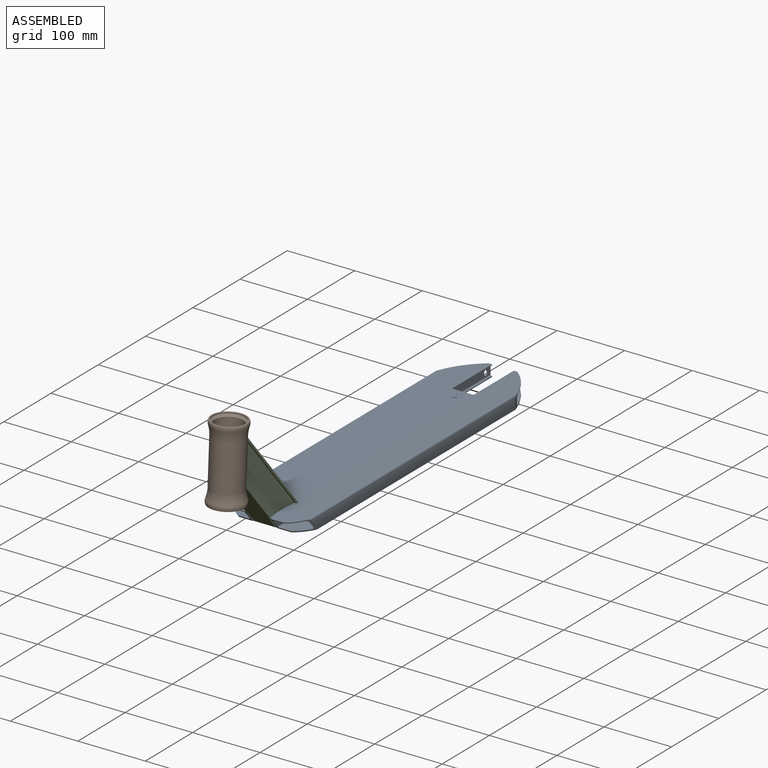
[diagram: assembled view]
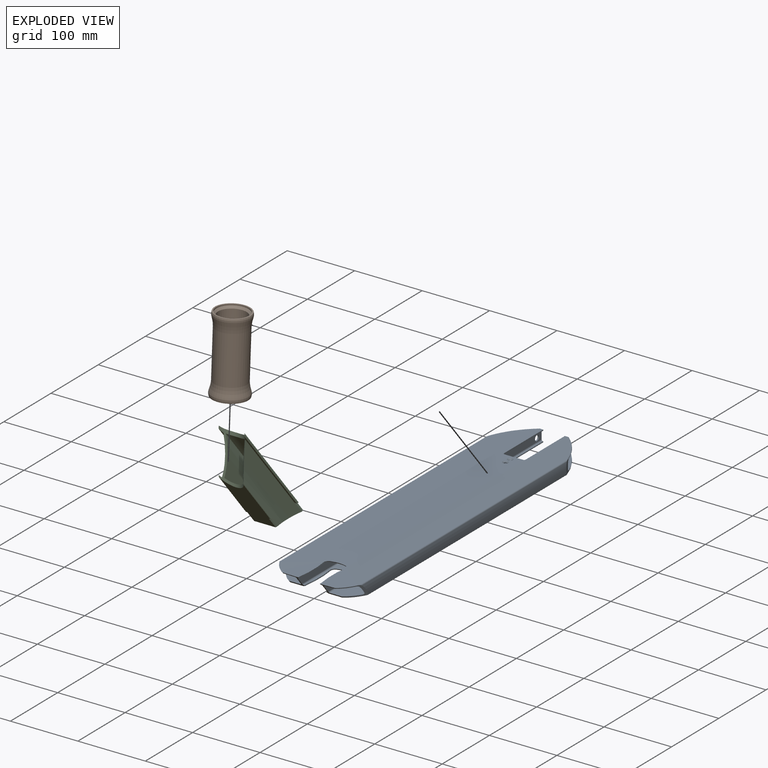
[diagram: exploded view]
GUIDED TOUR — MATED ASSEMBLY (Onshape document 1438ce3dd39c90005c70dcbc, AutoMate assembly 1438ce3dd39c90005c70dcbc_45b9a19df025072b10bbda96_6a6063b94d9cc4db74f0efc2_default)

This assembly has 3 components, labeled P0..P2 below (a component is one placed occurrence of a part; the same part can appear more than once), held together by 2 mates. A mate is a constraint between two components; its type names the relative motion it leaves free:
  FASTENED — locks the two components together rigidly (no relative motion).
Axis/direction vectors are unit vectors and 'through' points are millimeter coordinates, both in the assembly's world frame.

MATES
  1. FASTENED "Fastened 2": P1 <-> P2, direction (0.000, 0.052, 0.999) through (0.00, -582.55, 114.62) mm
  2. FASTENED "Fastened 1": P0 <-> P2, direction (0.000, 0.643, -0.766) through (-16.00, -518.60, 18.33) mm

ASSEMBLY ORDER
  1. P2 — the base component [order verified]
  2. P1 [order verified]
  3. P0 [order verified]
Order-tag legend:
  [order verified] — this step's position reverses a verified removal order: the component was checked to insert without passing through the ones already placed.

Of the 3 components, 1 carries the full construction recipe — the FeatureScript program that regenerates the part's solid from scratch; the rest are supplied as boundary geometry only.
Each toured component is shown spotlighted twice — in the assembled view, then in the exploded view, where a leader line traces a displaced component back to its assembled socket (saturated green if recipe-attached, orange if geometry-only; every other component desaturated gray) — followed by its recipe or geometry summary and the mates that hold it.
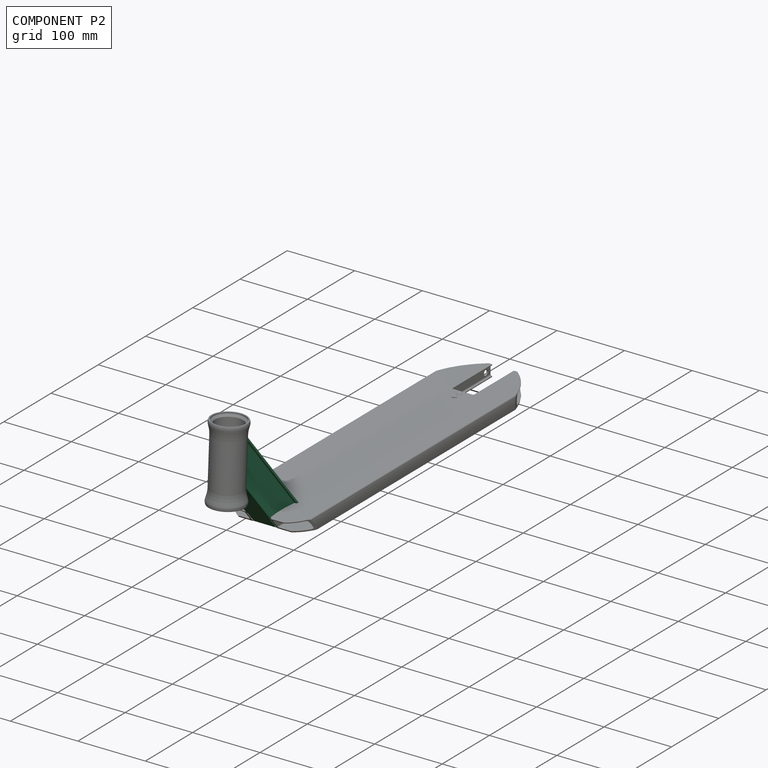
[diagram: component P2 — assembled]
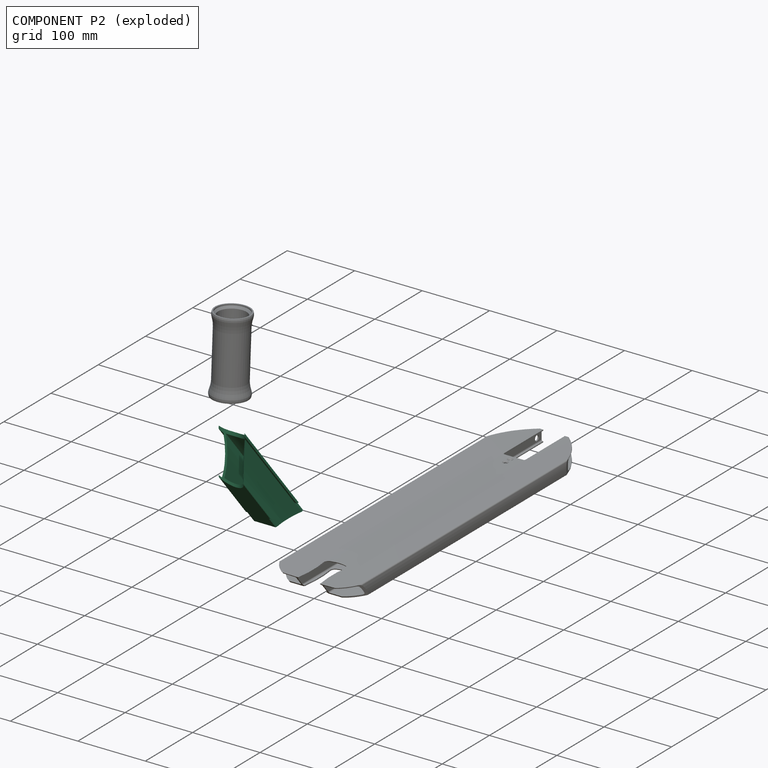
[diagram: component P2 — exploded]
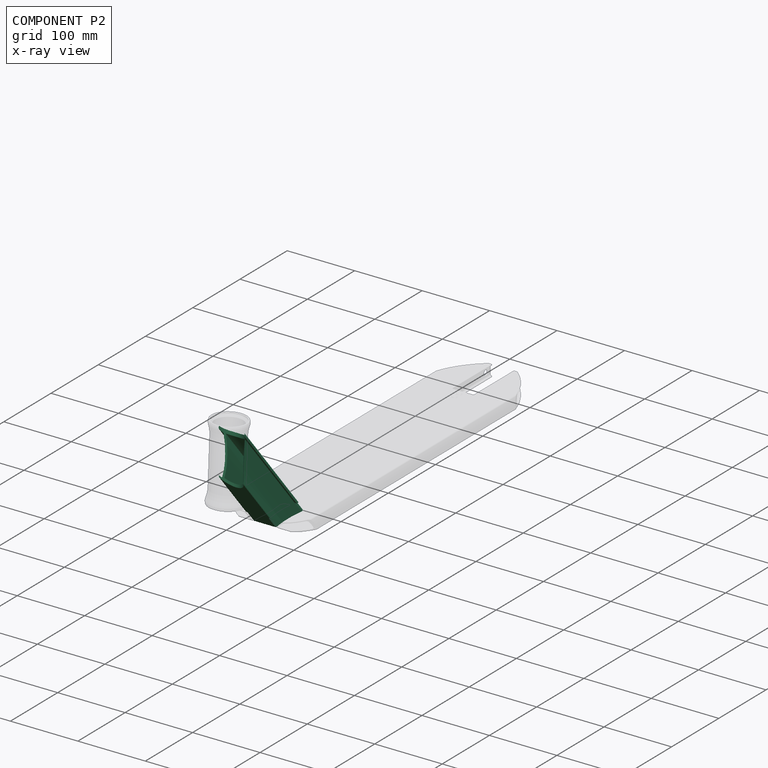
[diagram: component P2 — x-ray view]
COMPONENT P2 — recipe-attached (CADFS 00576307, mesh-verified: the recipe's output STEP matches this component's geometry to below the mesh-comparison resolution (tessellation chordal tolerance ~0.32 mm)).
Held by: FASTENED mate "Fastened 2" to P1; FASTENED mate "Fastened 1" to P0.
Construction recipe (FeatureScript — the CAD program that rebuilds this solid; sketch coordinates are in the units given by the * unit suffixes, e.g. mm):

FeatureScript 1511;
import(path : "onshape/std/geometry.fs", version : "1511.0");
import(path : "onshape/std/common.fs", version : "1511.0");
const mm = millimeter;
const VERTEX = EntityType.VERTEX;
const EDGE = EntityType.EDGE;
const FACE = EntityType.FACE;
const BODY = EntityType.BODY;
function v(x, y){return vector(x, y);}
function OD(order){return orderDisambiguation(order);}
function OSD(set){return originalSetDisambiguation(set);}
function TD(topology){return topologyDisambiguation(topology);}
function TDD(query){return trueDependencyDisambiguation(query);}
function sQuery(a, b, c) {return sketchEntityQuery(a, b, c);}

annotation { "Feature Type Name" : "Feature", "Feature Type Description" : "" }
export const myFeature = defineFeature(function(context is Context, id is Id, definition is map)
    precondition{}
    {
        {
            var Q0;
            Q0=qCreatedBy(makeId("Front.planeOp"),FACE);
            var sketch = newSketch(context, id + "F0", { "sketchPlane" : qUnion([Q0])});
            skLineSegment(sketch, "E0", {"start": v(0, 0) * mm, "end": v(18, 0) * mm});
            skLineSegment(sketch, "E1", {"start": v(0, 0) * mm, "end": v(-18, 0) * mm});
            skLineSegment(sketch, "E2", {"start": v(-16, 42) * mm, "end": v(-19, 42) * mm});
            skArc(sketch, "E3", {"start": v(-19, 45) * mm, "mid": v(-19.4, 43.5) * mm, "end": v(-19, 42) * mm});
            skArc(sketch, "E4", {"start": v(19, 45) * mm, "mid": v(0, 48.75) * mm, "end": v(-19, 45) * mm});
            skArc(sketch, "E5", {"start": v(19, 42) * mm, "mid": v(19.4, 43.5) * mm, "end": v(19, 45) * mm});
            skLineSegment(sketch, "E6", {"start": v(19, 42) * mm, "end": v(16, 42) * mm});
            skLineSegment(sketch, "E7", {"start": v(18, 2) * mm, "end": v(16, 2) * mm});
            skArc(sketch, "E8", {"start": v(16, 42) * mm, "mid": v(13.98, 22) * mm, "end": v(16, 2) * mm});
            skLineSegment(sketch, "E9", {"start": v(-18, 2) * mm, "end": v(-16, 2) * mm});
            skArc(sketch, "E10", {"start": v(-16, 2) * mm, "mid": v(-13.98, 22) * mm, "end": v(-16, 42) * mm});
            skLineSegment(sketch, "E11", {"start": v(0, 3) * mm, "end": v(-14, 3) * mm});
            skLineSegment(sketch, "E12", {"start": v(0, 3) * mm, "end": v(14, 3) * mm});
            skArc(sketch, "E13", {"start": v(-14, 3) * mm, "mid": v(-11.98, 23) * mm, "end": v(-14, 43) * mm});
            skArc(sketch, "E14", {"start": v(14, 43) * mm, "mid": v(11.98, 23) * mm, "end": v(14, 3) * mm});
            skArc(sketch, "E15", {"start": v(14, 43) * mm, "mid": v(0, 45) * mm, "end": v(-14, 43) * mm});
            skArc(sketch, "E16", {"start": v(-18, 2) * mm, "mid": v(-18.27, 1) * mm, "end": v(-18, 0) * mm});
            skArc(sketch, "E17", {"start": v(18, 0) * mm, "mid": v(18.27, 1) * mm, "end": v(18, 2) * mm});
            skSolve(sketch);
        }
        {
            var Q0;
            Q0 = qSketchRegion(id + "F0", true);
            extrude(context, id + "F1", {"entities" : qUnion([Q0]), "depth" : 207.98 * mm, "offsetDistance" : 25 * mm});
        }
        {
            var Q0;
            Q0=makeQuery(id+"F1.opExtrude","CAP_EDGE",EDGE,{"disambiguationData":[OSD([sQuery(id+"F0.wireOp",EDGE,"E0"),sQuery(id+"F0.wireOp",EDGE,"E1")])],"isStart":false});
            chamfer(context, id + "F2", {"entities" : qUnion([Q0]), "chamferType" : ChamferType.OFFSET_ANGLE, "width" : 45 * mm, "oppositeDirection" : false, "angle" : 50 * degree, "tangentPropagation" : true});
        }
        {
            var Q0;
            Q0=makeQuery(id+"F1.opExtrude","CAP_EDGE",EDGE,{"disambiguationData":[OSD([sQuery(id+"F0.wireOp",EDGE,"E0"),sQuery(id+"F0.wireOp",EDGE,"E1")])],"isStart":true});
            chamfer(context, id + "F3", {"entities" : qUnion([Q0]), "chamferType" : ChamferType.OFFSET_ANGLE, "width" : 45 * mm, "oppositeDirection" : false, "angle" : 47 * degree, "tangentPropagation" : true});
        }
        {
            var Q0;
            Q0=makeQuery(id+"F1.opExtrude","SWEPT_FACE",FACE,{"disambiguationData":[OSD([sQuery(id+"F0.wireOp",EDGE,"E11"),sQuery(id+"F0.wireOp",EDGE,"E12")])]});
            var Q1;
            Q1=makeQuery(id+"F1.opExtrude","SWEPT_EDGE",EDGE,{"disambiguationData":[OSD([sQuery(id+"F0.wireOp",EDGE,"E12"),sQuery(id+"F0.wireOp",EDGE,"E14")])]});
            cPlane(context, id + "F4", {"entities" : qUnion([Q0, Q1]), "cplaneType" : CPlaneType.LINE_ANGLE, "offset" : 25 * mm, "angle" : 90 * degree, "width" : 150 * mm, "height" : 150 * mm});
        }
        {
            var Q0;
            Q0=qCreatedBy(id+"F4.planeOp",FACE);
            var sketch = newSketch(context, id + "F5", { "sketchPlane" : qUnion([Q0])});
            skLineSegment(sketch, "E18", {"start": v(140.14, 0) * mm, "end": v(200.72, 72.2) * mm});
            skLineSegment(sketch, "E19", {"start": v(200.72, 72.2) * mm, "end": v(232.27, 72.2) * mm});
            skLineSegment(sketch, "E20", {"start": v(232.27, 72.2) * mm, "end": v(198.05, 0) * mm});
            skLineSegment(sketch, "E21", {"start": v(198.05, 0) * mm, "end": v(140.14, 0) * mm});
            skSolve(sketch);
        }
        {
            var Q0;
            Q0=makeQuery(id+"F5.imprint","IMPRINT",FACE,{"disambiguationData":[TD([[makeQuery(id+"F5.imprint","IMPRINT",EDGE,{"derivedFrom":sQuery(id+"F5.wireOp",EDGE,"E18")}),-1.0]])]});
            extrude(context, id + "F6", {"entities" : qUnion([Q0]), "operationType" : NewBodyOperationType.REMOVE, "oppositeDirection" : true, "depth" : 6 * mm, "offsetDistance" : 25 * mm, "hasSecondDirection" : true, "secondDirectionOppositeDirection" : true, "secondDirectionDepth" : 2 * mm});
        }
        {
            var Q0;
            Q0=makeQuery(id+"F1.opExtrude","SWEPT_FACE",FACE,{"disambiguationData":[OSD([sQuery(id+"F0.wireOp",EDGE,"E11"),sQuery(id+"F0.wireOp",EDGE,"E12")])]});
            var Q1;
            Q1=makeQuery(id+"F1.opExtrude","SWEPT_EDGE",EDGE,{"disambiguationData":[OSD([sQuery(id+"F0.wireOp",EDGE,"E11"),sQuery(id+"F0.wireOp",EDGE,"E13")])]});
            cPlane(context, id + "F7", {"entities" : qUnion([Q0, Q1]), "cplaneType" : CPlaneType.LINE_ANGLE, "offset" : 25 * mm, "angle" : 90 * degree, "width" : 150 * mm, "height" : 150 * mm});
        }
        {
            var Q0;
            Q0=qCreatedBy(id+"F7.planeOp",FACE);
            var sketch = newSketch(context, id + "F8", { "sketchPlane" : qUnion([Q0])});
            skLineSegment(sketch, "E22", {"start": v(140.14, 0) * mm, "end": v(185.93, 54.57) * mm});
            skLineSegment(sketch, "E23", {"start": v(185.93, 54.57) * mm, "end": v(210.62, 54.57) * mm});
            skLineSegment(sketch, "E24", {"start": v(210.62, 54.57) * mm, "end": v(168.94, 0) * mm});
            skLineSegment(sketch, "E25", {"start": v(168.94, 0) * mm, "end": v(140.14, 0) * mm});
            skSolve(sketch);
        }
        {
            var Q0;
            Q0=makeQuery(id+"F8.imprint","IMPRINT",FACE,{"disambiguationData":[TD([[makeQuery(id+"F8.imprint","IMPRINT",EDGE,{"derivedFrom":sQuery(id+"F8.wireOp",EDGE,"E22")}),-1.0]])]});
            extrude(context, id + "F9", {"entities" : qUnion([Q0]), "operationType" : NewBodyOperationType.REMOVE, "depth" : 6 * mm, "offsetDistance" : 25 * mm, "hasSecondDirection" : true, "secondDirectionOppositeDirection" : false, "secondDirectionDepth" : 2 * mm});
        }
        {
            var Q0;
            Q0=makeQuery(id+"F3.opChamfer","BLEND_FACE",FACE,{"disambiguationData":[OSD([sQuery(id+"F0.wireOp",EDGE,"E0"),sQuery(id+"F0.wireOp",EDGE,"E1")])]});
            var Q1;
            {var subQ0=sQuery(id+"F0.wireOp",EDGE,"E1");var subQ1=sQuery(id+"F0.wireOp",EDGE,"E0");Q1=makeQuery(id+"F3.opChamfer","BLEND_EDGE",EDGE,{"disambiguationData":[OD(1.0)],"blendedFrom":[makeQuery(id+"F1.opExtrude","CAP_EDGE",EDGE,{"disambiguationData":[OSD([subQ1,subQ0])],"isStart":true}),makeQuery(id+"F1.opExtrude","CAP_FACE",FACE,{"disambiguationData":[OSD([subQ1,subQ0,sQuery(id+"F0.wireOp",EDGE,"E2"),sQuery(id+"F0.wireOp",EDGE,"E3"),sQuery(id+"F0.wireOp",EDGE,"E4"),sQuery(id+"F0.wireOp",EDGE,"E5"),sQuery(id+"F0.wireOp",EDGE,"E6"),sQuery(id+"F0.wireOp",EDGE,"E7"),sQuery(id+"F0.wireOp",EDGE,"E8"),sQuery(id+"F0.wireOp",EDGE,"E9"),sQuery(id+"F0.wireOp",EDGE,"E10"),sQuery(id+"F0.wireOp",EDGE,"E11"),sQuery(id+"F0.wireOp",EDGE,"E12"),sQuery(id+"F0.wireOp",EDGE,"E13"),sQuery(id+"F0.wireOp",EDGE,"E14"),sQuery(id+"F0.wireOp",EDGE,"E15"),sQuery(id+"F0.wireOp",EDGE,"E16"),sQuery(id+"F0.wireOp",EDGE,"E17")])],"isStart":true})],"blendedInto":[makeQuery(id+"F1.opExtrude","CAP_FACE",FACE,{"disambiguationData":[OSD([subQ1,subQ0,sQuery(id+"F0.wireOp",EDGE,"E2"),sQuery(id+"F0.wireOp",EDGE,"E3"),sQuery(id+"F0.wireOp",EDGE,"E4"),sQuery(id+"F0.wireOp",EDGE,"E5"),sQuery(id+"F0.wireOp",EDGE,"E6"),sQuery(id+"F0.wireOp",EDGE,"E7"),sQuery(id+"F0.wireOp",EDGE,"E8"),sQuery(id+"F0.wireOp",EDGE,"E9"),sQuery(id+"F0.wireOp",EDGE,"E10"),sQuery(id+"F0.wireOp",EDGE,"E11"),sQuery(id+"F0.wireOp",EDGE,"E12"),sQuery(id+"F0.wireOp",EDGE,"E13"),sQuery(id+"F0.wireOp",EDGE,"E14"),sQuery(id+"F0.wireOp",EDGE,"E15"),sQuery(id+"F0.wireOp",EDGE,"E16"),sQuery(id+"F0.wireOp",EDGE,"E17")])],"isStart":true})]});}
            cPlane(context, id + "F10", {"entities" : qUnion([Q0, Q1]), "cplaneType" : CPlaneType.LINE_ANGLE, "offset" : 25 * mm, "angle" : 90 * degree, "width" : 150 * mm, "height" : 150 * mm});
        }
        {
            var Q0;
            Q0=qCreatedBy(id+"F10.planeOp",FACE);
            var sketch = newSketch(context, id + "F11", { "sketchPlane" : qUnion([Q0])});
            skCircle(sketch, "E26", {"center": v(0, 26.67) * mm, "radius": 20 * mm});
            skSolve(sketch);
        }
        {
            var Q0;
            Q0=makeQuery(id+"F11.imprint","IMPRINT",FACE,{"disambiguationData":[TD([[makeQuery(id+"F11.imprint","IMPRINT",EDGE,{"derivedFrom":sQuery(id+"F11.wireOp",EDGE,"E26")}),1.0]])]});
            extrude(context, id + "F12", {"entities" : qUnion([Q0]), "operationType" : NewBodyOperationType.REMOVE, "oppositeDirection" : true, "depth" : 90 * mm, "offsetDistance" : 25 * mm, "hasSecondDirection" : true, "secondDirectionOppositeDirection" : false, "secondDirectionDepth" : 5 * mm});
        }
        {
            var Q0;
            Q0=makeQuery(id+"F6.boolean.opBoolean","INTERSECT",EDGE,{"derivedFrom":[makeQuery(id+"F1.opExtrude","SWEPT_FACE",FACE,{"disambiguationData":[OSD([sQuery(id+"F0.wireOp",EDGE,"E4")])]}),makeQuery(id+"F6.opExtrude","CAP_FACE",FACE,{"disambiguationData":[OSD([sQuery(id+"F5.wireOp",EDGE,"E18"),sQuery(id+"F5.wireOp",EDGE,"E19"),sQuery(id+"F5.wireOp",EDGE,"E20"),sQuery(id+"F5.wireOp",EDGE,"E21")])],"isStart":true})]});
            var Q1;
            Q1=makeQuery(id+"F9.boolean.opBoolean","INTERSECT",EDGE,{"derivedFrom":[makeQuery(id+"F1.opExtrude","SWEPT_FACE",FACE,{"disambiguationData":[OSD([sQuery(id+"F0.wireOp",EDGE,"E4")])]}),makeQuery(id+"F9.opExtrude","CAP_FACE",FACE,{"disambiguationData":[OSD([sQuery(id+"F8.wireOp",EDGE,"E22"),sQuery(id+"F8.wireOp",EDGE,"E23"),sQuery(id+"F8.wireOp",EDGE,"E24"),sQuery(id+"F8.wireOp",EDGE,"E25")])],"isStart":true})]});
            fillet(context, id + "F13", {"entities" : qUnion([Q0, Q1]), "radius" : 6 * mm, "tangentPropagation" : true, "allowEdgeOverflow" : false});
        }
    });
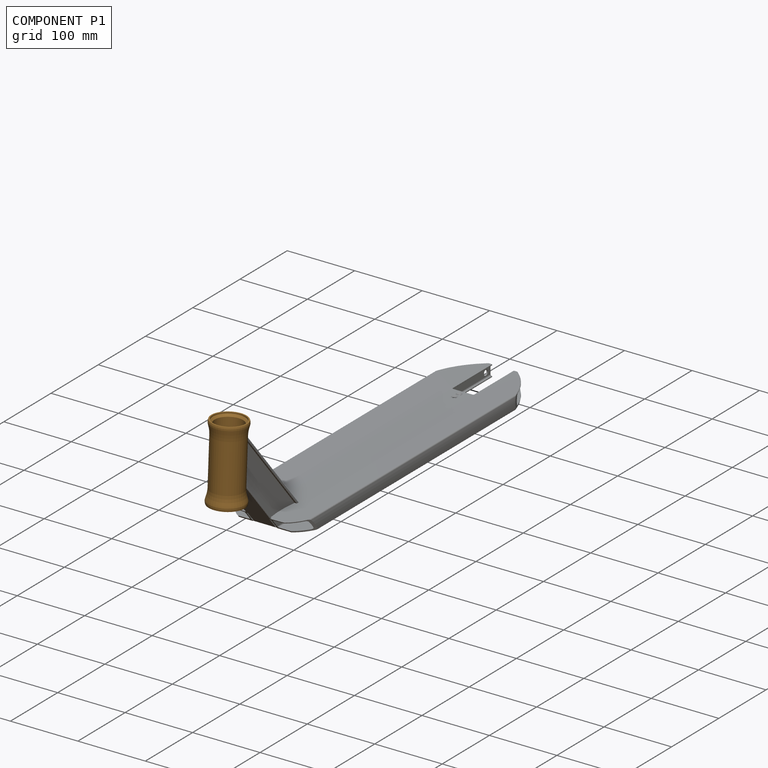
[diagram: component P1 — assembled]
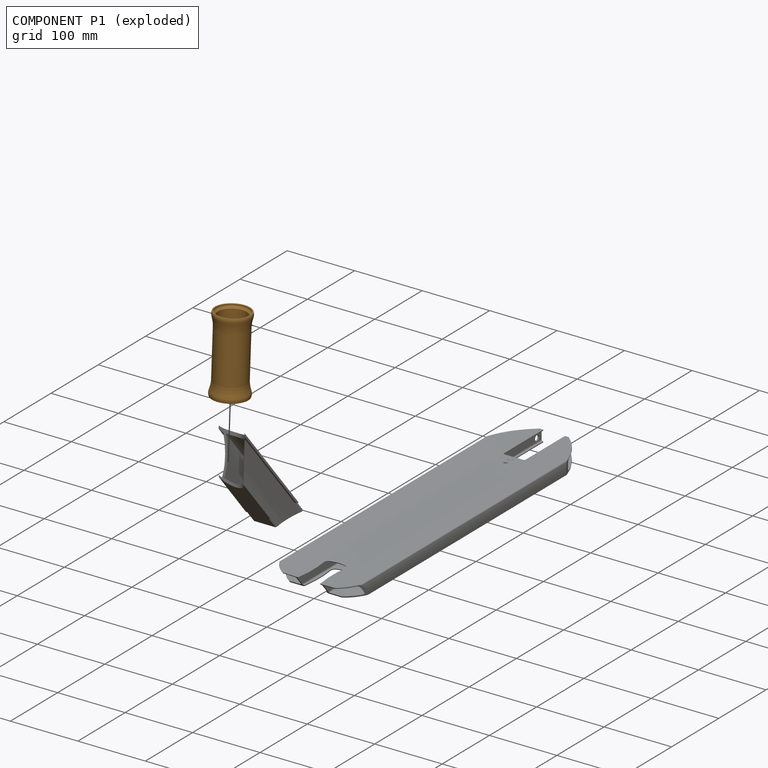
[diagram: component P1 — exploded]
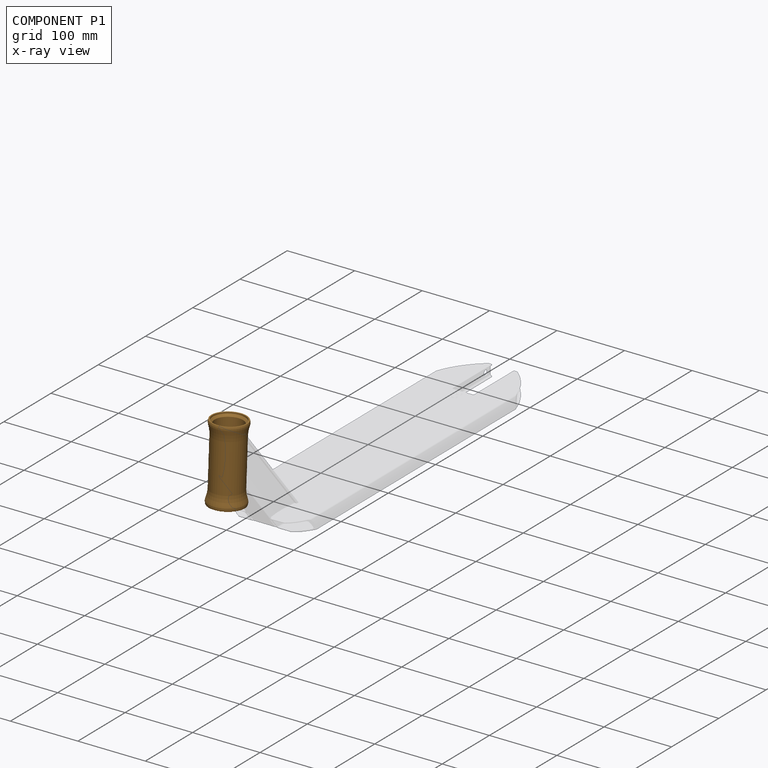
[diagram: component P1 — x-ray view]
COMPONENT P1 — geometry summary (no construction recipe available for this part):
  bounding box: 138.1 x 82.2 x 82.2 mm
  B-rep topology: 1 solid, 12 faces, 44 edges
  volume: 50573 mm^3 (5% of its bounding box)
  symmetry: revolution-symmetric about the z axis through its bounding-box center; mirror-symmetric across its x mid-plane, y mid-plane
Held by: FASTENED mate "Fastened 2" to P2.
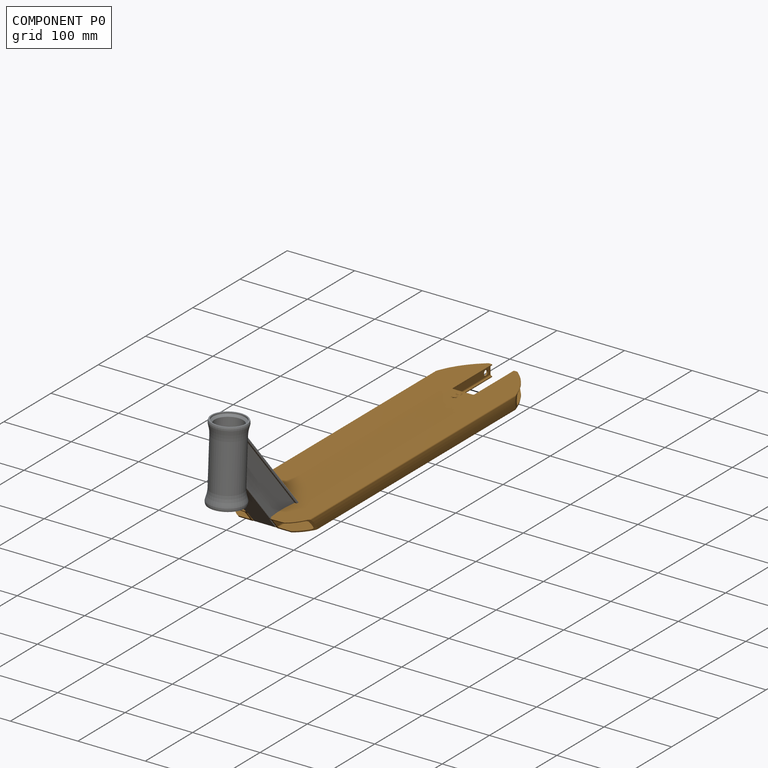
[diagram: component P0 — assembled]
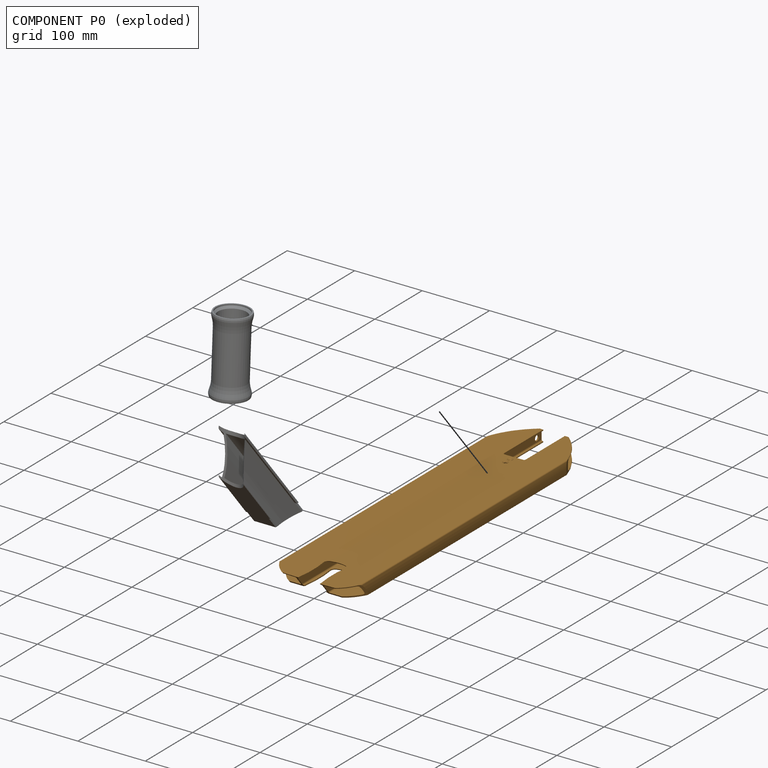
[diagram: component P0 — exploded]
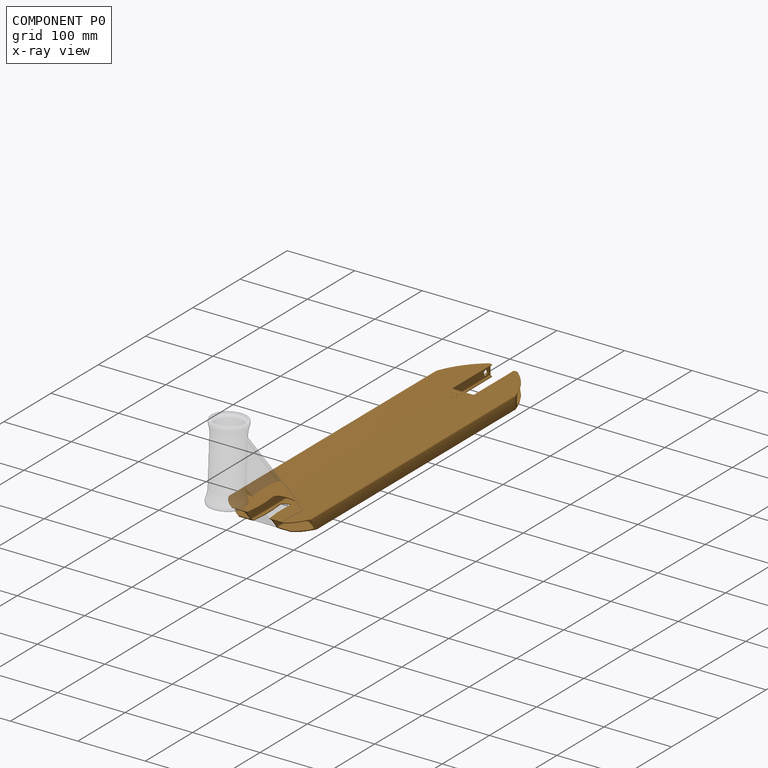
[diagram: component P0 — x-ray view]
COMPONENT P0 — geometry summary (no construction recipe available for this part):
  bounding box: 529.4 x 141.6 x 70.3 mm
  B-rep topology: 1 solid, 135 faces, 741 edges
  volume: 263442 mm^3 (5% of its bounding box)
  symmetry: mirror-symmetric across its x mid-plane
Held by: FASTENED mate "Fastened 1" to P2.
PROVENANCE & LICENSES
Assembly (occurrences, transforms, mates, per-part STEP geometry): AutoMate dataset, Zenodo record 7776208, CC0.
Construction recipes: CADFS (HuggingFace VladPyatov/CADFS, CC-BY-4.0, layered over the ABC dataset), FeatureScript reconstruction programs keyed by ABC model id.
Join: ABC meta listings map ABC model id -> Onshape documentId; within a shared document, parts are matched by geometric signature (bounding-box dims + volume at 0.1% relative tolerance, exact B-rep face/solid counts).
Verification: 1 of this assembly's 3 components carries a recipe attachment, and every attachment is mesh-verified: the CADFS STEP and the AutoMate member STEP were compared as meshes in their shared local frame (symmetric sampled-point-to-mesh distance); worst across the 1 attachment: below the mesh-comparison resolution (tessellation chordal tolerance ~0.32 mm) on a 213 mm part.
Renders: orthographic iso camera (az 35 / el 25); the floor grid conveys scale (grid pitch printed in each image; no ruler). In the exploded view each component is displaced by its stored offset vector: the offsets alone carry the explosion direction (mate normal/axis signs are not orientation cues and do not encode it), and separation distances are assigned per mate-chain, not proportionally to assembly-order depth.
